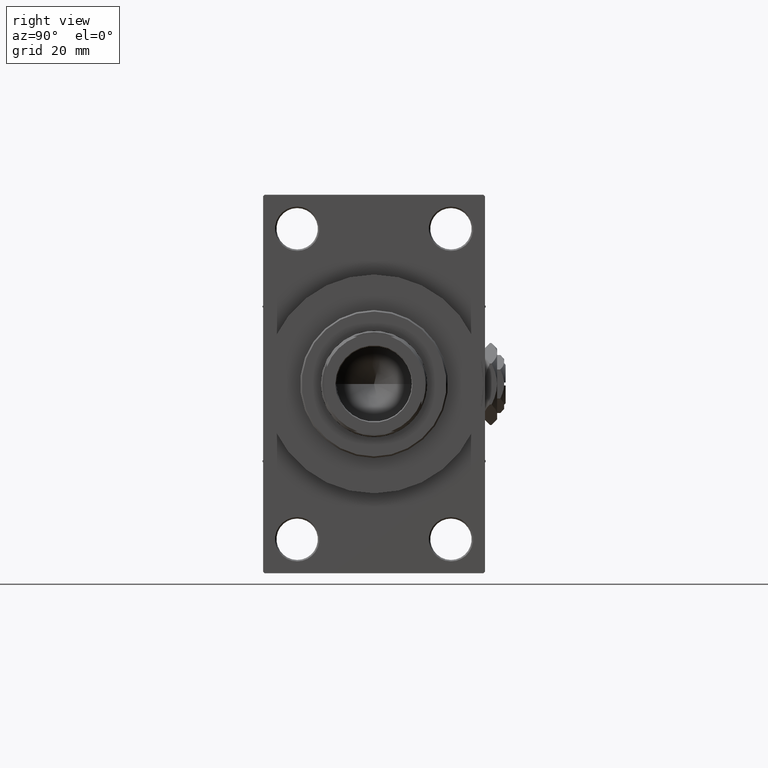
[diagram: clean part render]
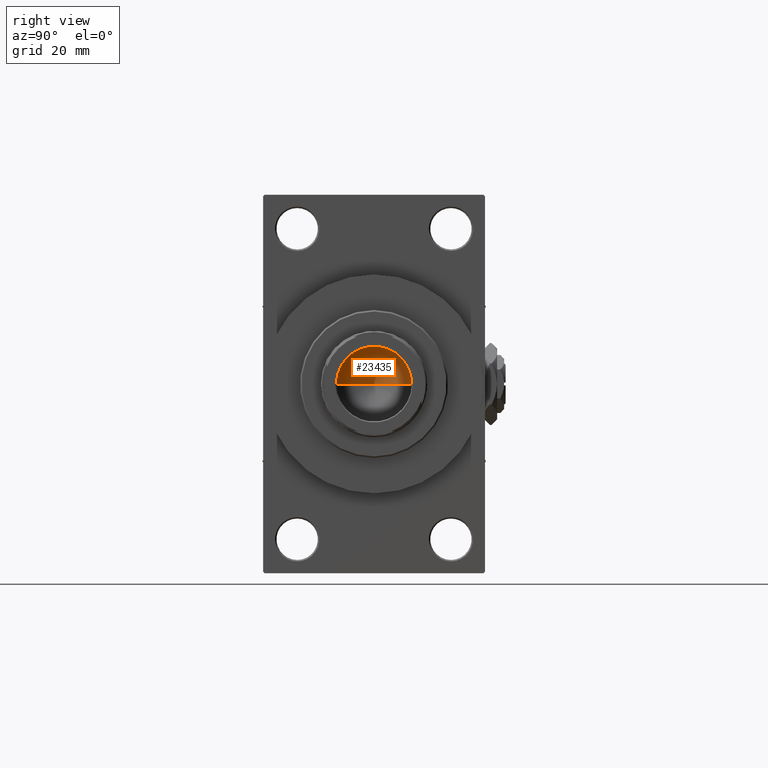
[diagram: same view with one face highlighted and labeled with its STEP entity id]
A machine part, right view. The second image highlights one B-rep face of the part: STEP entity #23435.
In plain terms, the highlighted conical surface has half-angle 59 deg.
Its self-contained STEP definition (entity closure, byte-faithful):
#563 = ORIENTED_EDGE ( 'NONE', *, *, #34061, .T. ) ;
#1973 = DIRECTION ( 'NONE',  ( -0.000000000000000000, -0.000000000000000000, 1.000000000000000000 ) ) ;
#2051 = CARTESIAN_POINT ( 'NONE',  ( -1.410643066818227497E-14, 0.000000000000000000, 89.33902710739862130 ) ) ;
#2878 = DIRECTION ( 'NONE',  ( -0.000000000000000000, -0.000000000000000000, 1.000000000000000000 ) ) ;
#3007 = CONICAL_SURFACE ( 'NONE', #5376, 12.74999999999998934, 1.029744258676653423 ) ;
#4221 = VECTOR ( 'NONE', #8978, 1000.000000000000000 ) ;
#4642 = DIRECTION ( 'NONE',  ( -0.8571673007021117785, 1.049727191138617956E-16, 0.5150380749100550437 ) ) ;
#5057 = AXIS2_PLACEMENT_3D ( 'NONE', #6862, #2878, #47728 ) ;
#5376 = AXIS2_PLACEMENT_3D ( 'NONE', #24663, #1973, #39859 ) ;
#6862 = CARTESIAN_POINT ( 'NONE',  ( 0.000000000000000000, 0.000000000000000000, 97.00000000000001421 ) ) ;
#8005 = LINE ( 'NONE', #12464, #4221 ) ;
#8978 = DIRECTION ( 'NONE',  ( 0.8571673007021117785, 0.000000000000000000, 0.5150380749100550437 ) ) ;
#12166 = CARTESIAN_POINT ( 'NONE',  ( 12.74999999999998934, 0.000000000000000000, 97.00000000000001421 ) ) ;
#12464 = CARTESIAN_POINT ( 'NONE',  ( 12.74999999999998934, 0.000000000000000000, 97.00000000000001421 ) ) ;
#13348 = VERTEX_POINT ( 'NONE', #12166 ) ;
#14486 = ORIENTED_EDGE ( 'NONE', *, *, #49034, .F. ) ;
#14666 = EDGE_LOOP ( 'NONE', ( #14486, #563, #19946 ) ) ;
#15334 = VERTEX_POINT ( 'NONE', #37608 ) ;
#17045 = VERTEX_POINT ( 'NONE', #2051 ) ;
#19946 = ORIENTED_EDGE ( 'NONE', *, *, #45499, .T. ) ;
#23435 = ADVANCED_FACE ( 'NONE', ( #43844 ), #3007, .F. ) ;
#24663 = CARTESIAN_POINT ( 'NONE',  ( 0.000000000000000000, 0.000000000000000000, 97.00000000000001421 ) ) ;
#26857 = CARTESIAN_POINT ( 'NONE',  ( -12.74999999999998934, 1.561424668912873928E-15, 97.00000000000001421 ) ) ;
#27354 = CIRCLE ( 'NONE', #5057, 12.74999999999998934 ) ;
#27796 = VECTOR ( 'NONE', #4642, 1000.000000000000000 ) ;
#34061 = EDGE_CURVE ( 'NONE', #17045, #15334, #41819, .T. ) ;
#37608 = CARTESIAN_POINT ( 'NONE',  ( -12.74999999999998934, 1.561424668912873928E-15, 97.00000000000001421 ) ) ;
#39859 = DIRECTION ( 'NONE',  ( 1.000000000000000000, 0.000000000000000000, 0.000000000000000000 ) ) ;
#41819 = LINE ( 'NONE', #26857, #27796 ) ;
#43844 = FACE_OUTER_BOUND ( 'NONE', #14666, .T. ) ;
#45499 = EDGE_CURVE ( 'NONE', #15334, #13348, #27354, .T. ) ;
#47728 = DIRECTION ( 'NONE',  ( 1.000000000000000000, 0.000000000000000000, 0.000000000000000000 ) ) ;
#49034 = EDGE_CURVE ( 'NONE', #17045, #13348, #8005, .T. ) ;